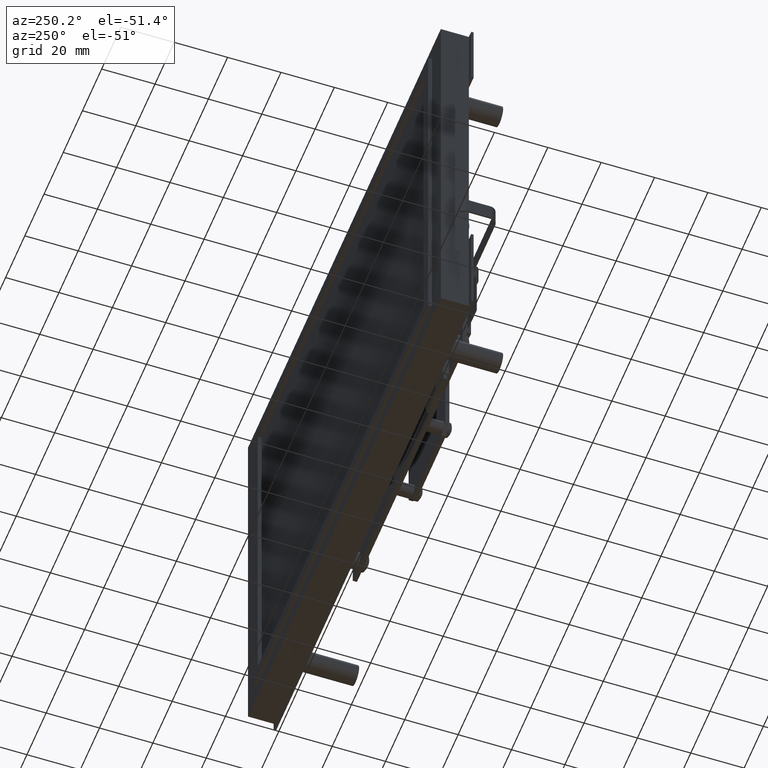
[diagram: clean part render]
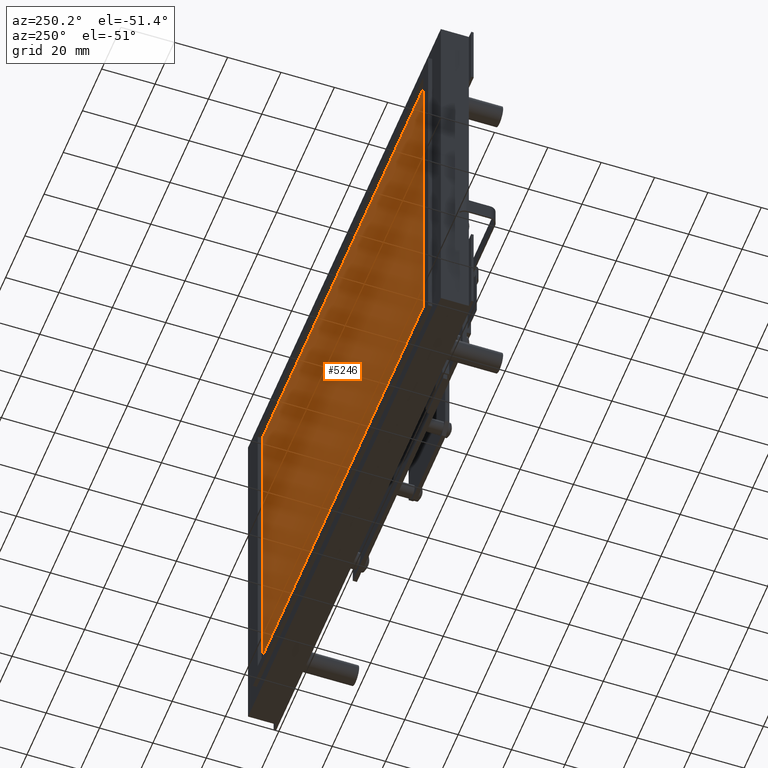
[diagram: same view with one face highlighted and labeled with its STEP entity id]
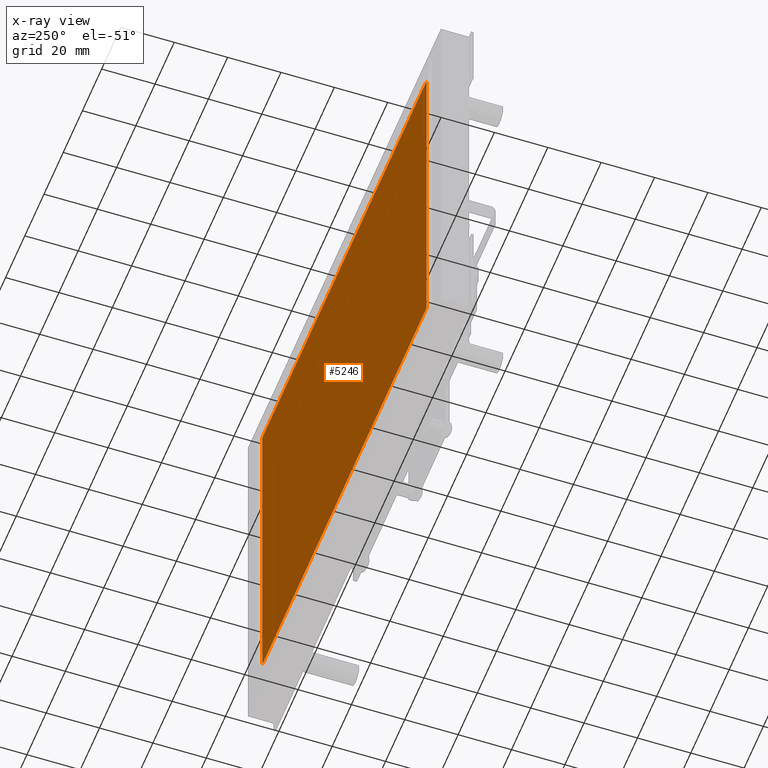
[diagram: x-ray of the same camera — body ghosted, the highlighted face saturated]
A machine part, auxiliary view. The second image highlights one B-rep face of the part: STEP entity #5246.
The next image is the same camera in x-ray: the body ghosted, the highlighted face saturated — about 0% of this face is hidden behind the body in this view.
In plain terms, the highlighted planar face has unit normal (0, 1, 0).
Its self-contained STEP definition (entity closure, byte-faithful):
#2513 = LINE ( 'NONE', #3696, #2521 ) ;
#2521 = VECTOR ( 'NONE', #3701, 39.37007874015748100 ) ;
#2524 = LINE ( 'NONE', #3706, #2527 ) ;
#2526 = LINE ( 'NONE', #3708, #2529 ) ;
#2527 = VECTOR ( 'NONE', #3707, 39.37007874015748100 ) ;
#2529 = VECTOR ( 'NONE', #3709, 39.37007874015748100 ) ;
#2534 = LINE ( 'NONE', #3716, #2537 ) ;
#2537 = VECTOR ( 'NONE', #3718, 39.37007874015748100 ) ;
#3696 = CARTESIAN_POINT ( 'NONE',  ( -3.362499999999999400, 0.0001000000000000207900, 2.522499999999999100 ) ) ;
#3701 = DIRECTION ( 'NONE',  ( 1.000000000000000000, 0.0000000000000000000, 0.0000000000000000000 ) ) ;
#3706 = CARTESIAN_POINT ( 'NONE',  ( -3.362499999999999400, 0.0001000000000000207900, -2.522500000000000900 ) ) ;
#3707 = DIRECTION ( 'NONE',  ( -1.000000000000000000, -0.0000000000000000000, -0.0000000000000000000 ) ) ;
#3708 = CARTESIAN_POINT ( 'NONE',  ( 3.362499999999999800, 0.0001000000000000207900, -2.522500000000000900 ) ) ;
#3709 = DIRECTION ( 'NONE',  ( -1.082992267062145900E-016, -0.0000000000000000000, -1.000000000000000000 ) ) ;
#3716 = CARTESIAN_POINT ( 'NONE',  ( -3.362499999999999400, 0.0001000000000000207900, -2.522500000000000900 ) ) ;
#3718 = DIRECTION ( 'NONE',  ( 0.0000000000000000000, 0.0000000000000000000, 1.000000000000000000 ) ) ;
#5246 = ADVANCED_FACE ( 'NONE', ( #9212 ), #17274, .T. ) ;
#5541 = VERTEX_POINT ( 'NONE', #20313 ) ;
#5684 = VERTEX_POINT ( 'NONE', #20324 ) ;
#5705 = VERTEX_POINT ( 'NONE', #20322 ) ;
#5741 = VERTEX_POINT ( 'NONE', #20341 ) ;
#7244 = ORIENTED_EDGE ( 'NONE', *, *, #8128, .T. ) ;
#7257 = ORIENTED_EDGE ( 'NONE', *, *, #8125, .T. ) ;
#7258 = ORIENTED_EDGE ( 'NONE', *, *, #8133, .T. ) ;
#7259 = ORIENTED_EDGE ( 'NONE', *, *, #8129, .T. ) ;
#8125 = EDGE_CURVE ( 'NONE', #5705, #5684, #2513, .T. ) ;
#8128 = EDGE_CURVE ( 'NONE', #5541, #5741, #2524, .T. ) ;
#8129 = EDGE_CURVE ( 'NONE', #5684, #5541, #2526, .T. ) ;
#8133 = EDGE_CURVE ( 'NONE', #5741, #5705, #2534, .T. ) ;
#9212 = FACE_OUTER_BOUND ( 'NONE', #13426, .T. ) ;
#11214 = AXIS2_PLACEMENT_3D ( 'NONE', #17267, #17276, #17277 ) ;
#13426 = EDGE_LOOP ( 'NONE', ( #7259, #7244, #7258, #7257 ) ) ;
#17267 = CARTESIAN_POINT ( 'NONE',  ( 0.0000000000000000000, 0.0001000000000000207900, 0.0000000000000000000 ) ) ;
#17274 = PLANE ( 'NONE',  #11214 ) ;
#17276 = DIRECTION ( 'NONE',  ( 0.0000000000000000000, 1.000000000000000000, 0.0000000000000000000 ) ) ;
#17277 = DIRECTION ( 'NONE',  ( 0.0000000000000000000, -0.0000000000000000000, 1.000000000000000000 ) ) ;
#20313 = CARTESIAN_POINT ( 'NONE',  ( 3.362499999999999800, 0.0001000000000000207900, -2.522500000000000900 ) ) ;
#20322 = CARTESIAN_POINT ( 'NONE',  ( -3.362499999999999400, 0.0001000000000000207900, 2.522499999999999100 ) ) ;
#20324 = CARTESIAN_POINT ( 'NONE',  ( 3.362500000000000700, 0.0001000000000000207900, 2.522499999999999100 ) ) ;
#20341 = CARTESIAN_POINT ( 'NONE',  ( -3.362499999999999400, 0.0001000000000000207900, -2.522500000000000900 ) ) ;